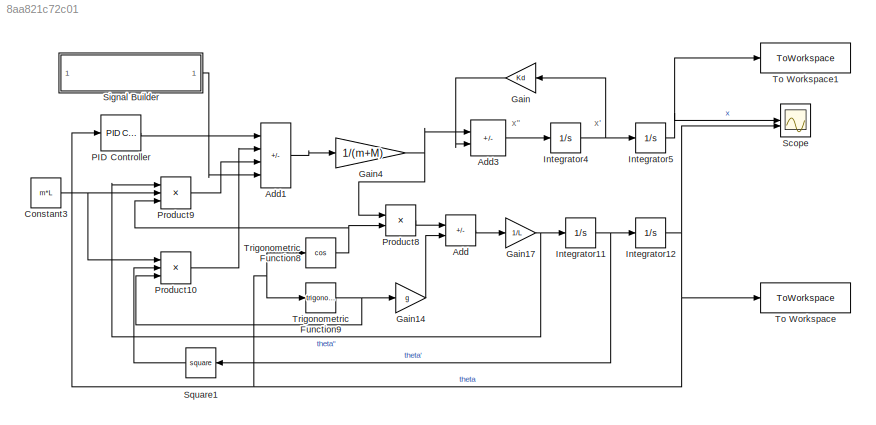
MODEL slx_8aa821c72c01
KIND model
CONFIG AbsTol = auto
CONFIG EnableMultiTasking = off
CONFIG FixedStep = 0.001
CONFIG MaxStep = auto
CONFIG MinStep = auto
CONFIG RelTol = 1e-3
CONFIG SampleTimeConstraint = Unconstrained
CONFIG SolverName = FixedStepAuto
CONFIG StartTime = 0.0
CONFIG StopTime = 10
BLOCK [Sum] Add
  IconShape = rectangular
  Inputs = +-
BLOCK [Sum] Add1
  IconShape = rectangular
  Inputs = ++-+
BLOCK [Sum] Add3
  IconShape = rectangular
  Inputs = +-
BLOCK [Constant] Constant3
  Value = m*L
BLOCK [Gain] Gain
  Gain = Kd
  NameLocation = top
BLOCK [Gain] Gain14
  Gain = g
BLOCK [Gain] Gain17
  Gain = 1/L
BLOCK [Gain] Gain4
  Gain = 1/(m+M)
BLOCK [Integrator] Integrator11
BLOCK [Integrator] Integrator12
  InitialCondition = thetastart
BLOCK [Integrator] Integrator4
BLOCK [Integrator] Integrator5
  InitialCondition = xstart
BLOCK [Reference] PID Controller  REF=slpidlib/PID Controller
  LibrarySourceBlock = simulink/Continuous/PID Controller
  SourceBlock = slpidlib/PID Controller
  SourceType = PID 1dof
BLOCK [Product] Product10
  Inputs = 3
BLOCK [Product] Product8
BLOCK [Product] Product9
  Inputs = 3
BLOCK [Scope] Scope
  Floating = off
  NumInputPorts = 2
  ScopeSpecificationString = Simulink.scopes.TimeScopeBlockCfg('CurrentConfiguration', extmgr.ConfigurationSet(extmgr.Configuration('Core','General UI',true),extmgr.Configuration('Core','Source UI',true),extmgr.Configuration('Sources','WiredSimulink',true,'DataLoggingVariableName','ScopeData1'),extmgr.Configuration('Visuals','Time Domain',true,'SerializedDisplays',{struct('MinYLimReal','1.96164','MaxYLimReal','5.3376','YLabel...<+1991ch>
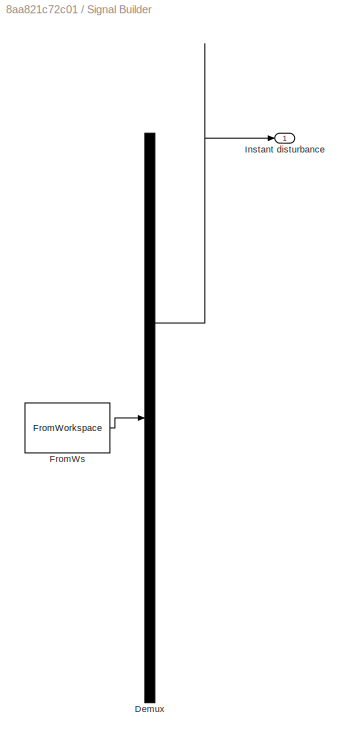
BLOCK [SubSystem] Signal Builder
  ClipboardFcn = sigbuilder_block('clipboard');
  CloseFcn = sigbuilder_block('close');
  ContinueFcn = sigbuilder_block('continue');
  CopyFcn = sigbuilder_block('copy');
  DeleteFcn = sigbuilder_block('delete');
  LoadFcn = sigbuilder_block('load',[437.6 199.2 550.4 400 ]);
  MaskHideContents = on
  ModelCloseFcn = sigbuilder_block('modelClose');
  NameChangeFcn = sigbuilder_block('namechange');
  OpenFcn = sigbuilder_block('open',[437.6 199.2 550.4 400 ]);
  PauseFcn = sigbuilder_block('pause');
  PreSaveFcn = sigbuilder_block('preSave');
  StartFcn = sigbuilder_block('start');
  StopFcn = sigbuilder_block('stop');
  Tag = STV Subsys
BLOCK [Outport] Signal Builder/ Instant disturbance
  Tag = STV Outport
BLOCK [Demux] Signal Builder/Demux
  DisplayOption = none
  Outputs = 1
  Tag = STV Demux
BLOCK [FromWorkspace] Signal Builder/FromWs
  Tag = STV FromWs
  VariableName = tuvar
BLOCK [Math] Square1
  NameLocation = top
  Operator = square
BLOCK [ToWorkspace] To Workspace
  FixptAsFi = on
  MaxDataPoints = inf
  SampleTime = -1
  SaveFormat = Timeseries
  VariableName = theta
BLOCK [ToWorkspace] To Workspace1
  FixptAsFi = on
  MaxDataPoints = inf
  SampleTime = -1
  SaveFormat = Timeseries
  VariableName = x
BLOCK [Trigonometry] Trigonometric Function8
  Operator = cos
BLOCK [Trigonometry] Trigonometric Function9
ANNOTATION (root): x"
ANNOTATION (root): x'
LINE Add1:1 -> Gain4:1
LINE Add3:1 -> Integrator4:1
LINE Add:1 -> Gain17:1
NET Constant3:1 -> Product10:1, Product9:2
LINE Gain14:1 -> Add:2
NET Gain17:1 -> Integrator11:1, Product9:1
NET Gain4:1 -> Add3:1, Product8:1
LINE Gain:1 -> Add3:2
NET Integrator11:1 -> Integrator12:1, Square1:1
NET Integrator12:1 -> PID Controller:1, Scope:2, To Workspace:1, Trigonometric Function8:1, Trigonometric Function9:1
NET Integrator4:1 -> Gain:1, Integrator5:1
NET Integrator5:1 -> Scope:1, To Workspace1:1
LINE PID Controller:1 -> Add1:1
LINE Product10:1 -> Add1:2
LINE Product8:1 -> Add:1
LINE Product9:1 -> Add1:3
LINE Signal Builder:1 -> Add1:4
LINE Square1:1 -> Product10:2
NET Trigonometric Function8:1 -> Product8:2, Product9:3
NET Trigonometric Function9:1 -> Gain14:1, Product10:3
note: NET lines group one-source signal fan-out (src -> all destinations, sorted); 1:1 wires keep LINE
